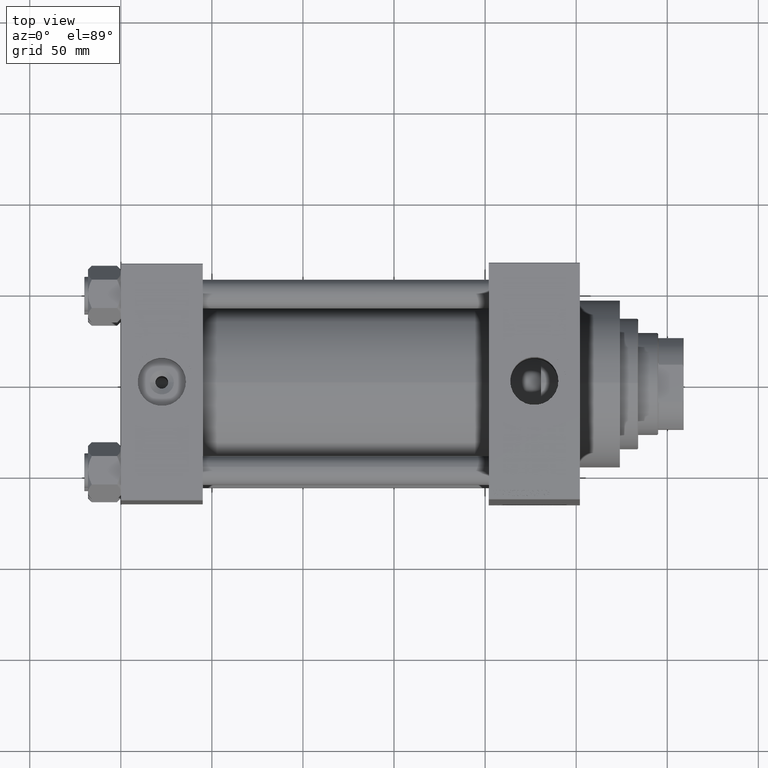
[diagram: clean part render]
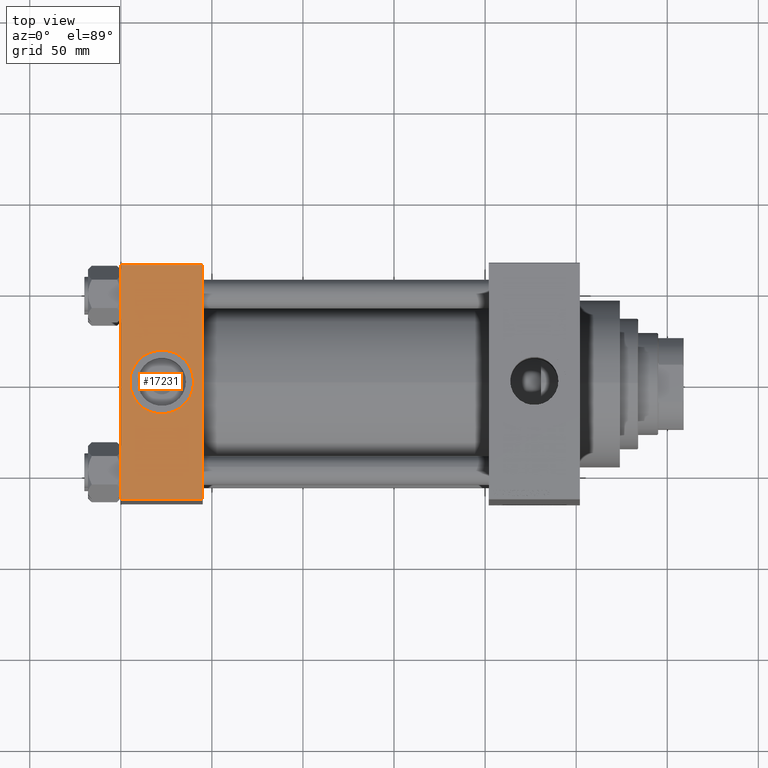
[diagram: same view with one face highlighted and labeled with its STEP entity id]
A machine part, top view. The second image highlights one B-rep face of the part: STEP entity #17231.
In plain terms, the highlighted planar face has unit normal (0, 0, -1).
Its self-contained STEP definition (entity closure, byte-faithful):
#64 = ORIENTED_EDGE ( 'NONE', *, *, #14220, .F. ) ;
#950 = CARTESIAN_POINT ( 'NONE',  ( 45.00000000000000000, 65.00000000000000000, 65.00000000000001421 ) ) ;
#1252 = VECTOR ( 'NONE', #41120, 1000.000000000000000 ) ;
#1358 = CIRCLE ( 'NONE', #32175, 17.50000000000000000 ) ;
#1766 = VERTEX_POINT ( 'NONE', #27499 ) ;
#2485 = LINE ( 'NONE', #13590, #40478 ) ;
#3985 = CARTESIAN_POINT ( 'NONE',  ( 22.50000000000000000, -8.673617379884035472E-15, 65.00000000000000000 ) ) ;
#4478 = DIRECTION ( 'NONE',  ( 1.000000000000000000, 0.000000000000000000, 0.000000000000000000 ) ) ;
#4805 = PLANE ( 'NONE',  #46204 ) ;
#5255 = LINE ( 'NONE', #13442, #26714 ) ;
#8376 = DIRECTION ( 'NONE',  ( 0.000000000000000000, -1.000000000000000000, -1.067522139062650425E-16 ) ) ;
#10447 = CARTESIAN_POINT ( 'NONE',  ( 22.50000000000000000, -8.673617379884035472E-15, 65.00000000000000000 ) ) ;
#11088 = CARTESIAN_POINT ( 'NONE',  ( 0.000000000000000000, -64.49999999999997158, 65.00000000000000000 ) ) ;
#13442 = CARTESIAN_POINT ( 'NONE',  ( 45.00000000000000000, -64.49999999999997158, 65.00000000000000000 ) ) ;
#13590 = CARTESIAN_POINT ( 'NONE',  ( 45.00000000000000000, 65.00000000000000000, 65.00000000000001421 ) ) ;
#13608 = ORIENTED_EDGE ( 'NONE', *, *, #36840, .T. ) ;
#14220 = EDGE_CURVE ( 'NONE', #1766, #45716, #28366, .T. ) ;
#14577 = CARTESIAN_POINT ( 'NONE',  ( 40.00000000000000000, -8.673617379884035472E-15, 65.00000000000000000 ) ) ;
#15436 = FACE_OUTER_BOUND ( 'NONE', #24638, .T. ) ;
#15921 = FACE_BOUND ( 'NONE', #27526, .T. ) ;
#16052 = AXIS2_PLACEMENT_3D ( 'NONE', #10447, #25163, #25635 ) ;
#16388 = CARTESIAN_POINT ( 'NONE',  ( 45.00000000000000000, -64.49999999999997158, 65.00000000000000000 ) ) ;
#16601 = DIRECTION ( 'NONE',  ( 1.000000000000000000, 0.000000000000000000, 0.000000000000000000 ) ) ;
#17231 = ADVANCED_FACE ( 'NONE', ( #15921, #15436 ), #4805, .F. ) ;
#19155 = CARTESIAN_POINT ( 'NONE',  ( 0.000000000000000000, 64.49999999999997158, 65.00000000000001421 ) ) ;
#20057 = CARTESIAN_POINT ( 'NONE',  ( 0.000000000000000000, 64.49999999999997158, 65.00000000000001421 ) ) ;
#21996 = ORIENTED_EDGE ( 'NONE', *, *, #43078, .F. ) ;
#22420 = VERTEX_POINT ( 'NONE', #11088 ) ;
#24483 = LINE ( 'NONE', #19155, #1252 ) ;
#24638 = EDGE_LOOP ( 'NONE', ( #27544, #13608, #27245, #42190 ) ) ;
#25163 = DIRECTION ( 'NONE',  ( 0.000000000000000000, 0.000000000000000000, 1.000000000000000000 ) ) ;
#25635 = DIRECTION ( 'NONE',  ( 1.000000000000000000, 0.000000000000000000, 0.000000000000000000 ) ) ;
#26714 = VECTOR ( 'NONE', #16601, 1000.000000000000000 ) ;
#27245 = ORIENTED_EDGE ( 'NONE', *, *, #35323, .F. ) ;
#27499 = CARTESIAN_POINT ( 'NONE',  ( 4.999999999999997335, -6.530485481376167224E-15, 65.00000000000000000 ) ) ;
#27526 = EDGE_LOOP ( 'NONE', ( #21996, #64 ) ) ;
#27544 = ORIENTED_EDGE ( 'NONE', *, *, #47395, .T. ) ;
#28310 = DIRECTION ( 'NONE',  ( 0.000000000000000000, -1.000000000000000000, -1.067522139062650425E-16 ) ) ;
#28366 = CIRCLE ( 'NONE', #16052, 17.50000000000000000 ) ;
#29820 = DIRECTION ( 'NONE',  ( 0.000000000000000000, 0.000000000000000000, 1.000000000000000000 ) ) ;
#29904 = DIRECTION ( 'NONE',  ( 0.000000000000000000, 1.000000000000000000, 1.067522139062650548E-16 ) ) ;
#31048 = LINE ( 'NONE', #41445, #36162 ) ;
#32175 = AXIS2_PLACEMENT_3D ( 'NONE', #3985, #29820, #4478 ) ;
#33054 = VERTEX_POINT ( 'NONE', #20057 ) ;
#35323 = EDGE_CURVE ( 'NONE', #47182, #38975, #2485, .T. ) ;
#36162 = VECTOR ( 'NONE', #8376, 1000.000000000000000 ) ;
#36840 = EDGE_CURVE ( 'NONE', #22420, #38975, #5255, .T. ) ;
#37304 = EDGE_CURVE ( 'NONE', #47182, #33054, #24483, .T. ) ;
#37632 = DIRECTION ( 'NONE',  ( 0.000000000000000000, 1.067522139062650548E-16, -1.000000000000000000 ) ) ;
#38975 = VERTEX_POINT ( 'NONE', #16388 ) ;
#40478 = VECTOR ( 'NONE', #28310, 1000.000000000000000 ) ;
#41120 = DIRECTION ( 'NONE',  ( -1.000000000000000000, 0.000000000000000000, 0.000000000000000000 ) ) ;
#41445 = CARTESIAN_POINT ( 'NONE',  ( 0.000000000000000000, 65.00000000000000000, 65.00000000000001421 ) ) ;
#42190 = ORIENTED_EDGE ( 'NONE', *, *, #37304, .T. ) ;
#42450 = CARTESIAN_POINT ( 'NONE',  ( 45.00000000000000000, 64.49999999999997158, 65.00000000000001421 ) ) ;
#43078 = EDGE_CURVE ( 'NONE', #45716, #1766, #1358, .T. ) ;
#45716 = VERTEX_POINT ( 'NONE', #14577 ) ;
#46204 = AXIS2_PLACEMENT_3D ( 'NONE', #950, #37632, #29904 ) ;
#47182 = VERTEX_POINT ( 'NONE', #42450 ) ;
#47395 = EDGE_CURVE ( 'NONE', #33054, #22420, #31048, .T. ) ;